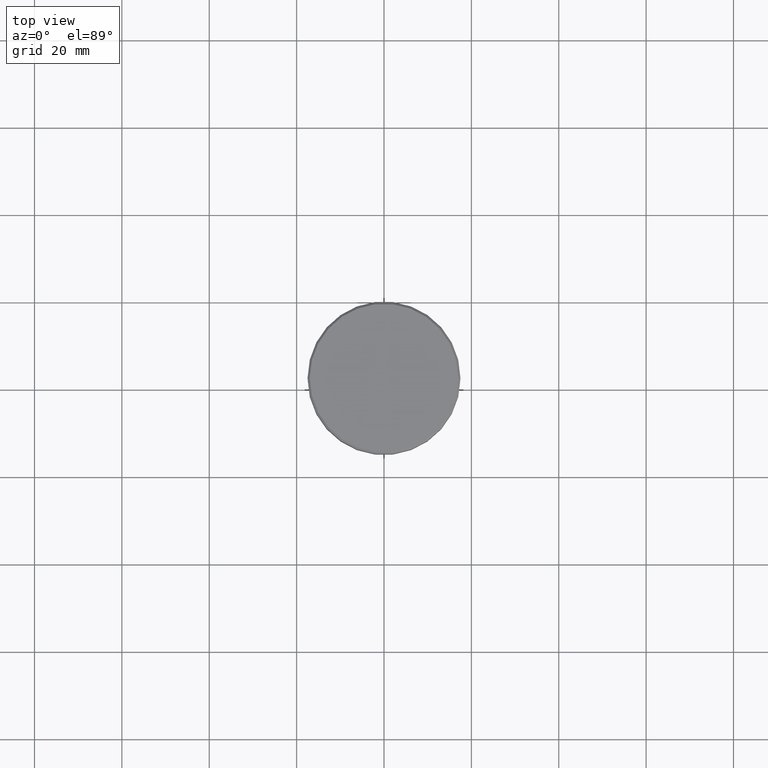
[diagram: clean part render]
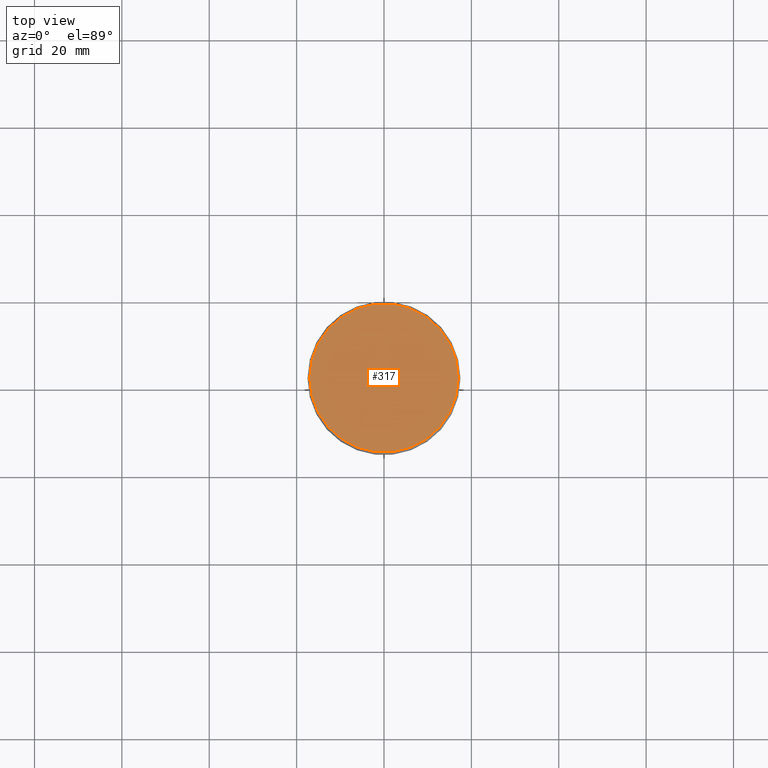
[diagram: same view with one face highlighted and labeled with its STEP entity id]
A machine part, top view. The second image highlights one B-rep face of the part: STEP entity #317.
In plain terms, the highlighted planar face has unit normal (0, -0, 1).
Its self-contained STEP definition (entity closure, byte-faithful):
#3 = CARTESIAN_POINT ( 'NONE',  ( 0.000000000000000000, 0.000000000000000000, 0.000000000000000000 ) ) ;
#4 = AXIS2_PLACEMENT_3D ( 'NONE', #163, #207, #572 ) ;
#45 = DIRECTION ( 'NONE',  ( 1.000000000000000000, 0.000000000000000000, 0.000000000000000000 ) ) ;
#126 = EDGE_CURVE ( 'NONE', #291, #139, #193, .T. ) ;
#139 = VERTEX_POINT ( 'NONE', #242 ) ;
#149 = DIRECTION ( 'NONE',  ( -0.000000000000000000, -0.000000000000000000, 1.000000000000000000 ) ) ;
#163 = CARTESIAN_POINT ( 'NONE',  ( 0.000000000000000000, 0.000000000000000000, 0.000000000000000000 ) ) ;
#167 = EDGE_LOOP ( 'NONE', ( #336, #489 ) ) ;
#193 = CIRCLE ( 'NONE', #508, 17.00000000000000000 ) ;
#207 = DIRECTION ( 'NONE',  ( 0.000000000000000000, -0.000000000000000000, 1.000000000000000000 ) ) ;
#226 = DIRECTION ( 'NONE',  ( -0.000000000000000000, -0.000000000000000000, 1.000000000000000000 ) ) ;
#242 = CARTESIAN_POINT ( 'NONE',  ( 17.00000000000000000, 2.112515728529184067E-15, 0.000000000000000000 ) ) ;
#254 = CARTESIAN_POINT ( 'NONE',  ( -17.00000000000000000, 0.000000000000000000, 0.000000000000000000 ) ) ;
#291 = VERTEX_POINT ( 'NONE', #254 ) ;
#317 = ADVANCED_FACE ( 'NONE', ( #447 ), #490, .T. ) ;
#328 = CARTESIAN_POINT ( 'NONE',  ( 0.000000000000000000, 0.000000000000000000, 0.000000000000000000 ) ) ;
#332 = DIRECTION ( 'NONE',  ( 1.000000000000000000, 0.000000000000000000, 0.000000000000000000 ) ) ;
#336 = ORIENTED_EDGE ( 'NONE', *, *, #126, .T. ) ;
#365 = CIRCLE ( 'NONE', #535, 17.00000000000000000 ) ;
#447 = FACE_OUTER_BOUND ( 'NONE', #167, .T. ) ;
#489 = ORIENTED_EDGE ( 'NONE', *, *, #511, .T. ) ;
#490 = PLANE ( 'NONE',  #4 ) ;
#508 = AXIS2_PLACEMENT_3D ( 'NONE', #328, #149, #332 ) ;
#511 = EDGE_CURVE ( 'NONE', #139, #291, #365, .T. ) ;
#535 = AXIS2_PLACEMENT_3D ( 'NONE', #3, #226, #45 ) ;
#572 = DIRECTION ( 'NONE',  ( 1.000000000000000000, 0.000000000000000000, 0.000000000000000000 ) ) ;